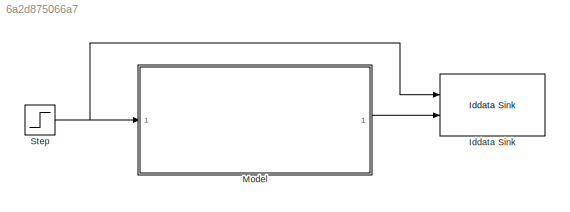
MODEL slx_6a2d875066a7
KIND model
CONFIG AbsTol = auto
CONFIG EnableMultiTasking = off
CONFIG FixedStep = auto
CONFIG MaxStep = auto
CONFIG MinStep = auto
CONFIG RelTol = 1e-3
CONFIG SampleTimeConstraint = Unconstrained
CONFIG SolverName = VariableStepAuto
CONFIG StartTime = 0.0
CONFIG StopFcn = rawdata=out.rawdata;\nsave rawdata\n
CONFIG StopTime = 10.0
BLOCK [Reference] Iddata Sink  REF=slident/Iddata Sink  (lib defined in mdl_f7d4911ca73a)
  Ports = [2]
  SourceBlock = slident/Iddata Sink
  SourceProductBaseCode = ID
  SourceType = IDDATA Sink
BLOCK [ModelReference] Model
  ModelNameDialog = model.slx
  ModelReferenceVersion = 1.2
  Ports = [1, 1]
BLOCK [Step] Step
  SampleTime = 0
  Time = 0
LINE Model:1 -> Iddata Sink:2
NET Step:1 -> Iddata Sink:1, Model:1
note: NET lines group one-source signal fan-out (src -> all destinations, sorted); 1:1 wires keep LINE
